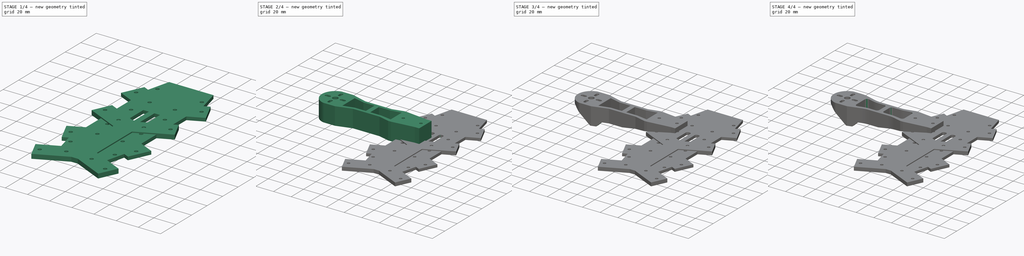
[diagram: build sequence overview — one tinted view per stage of 4, left to right]
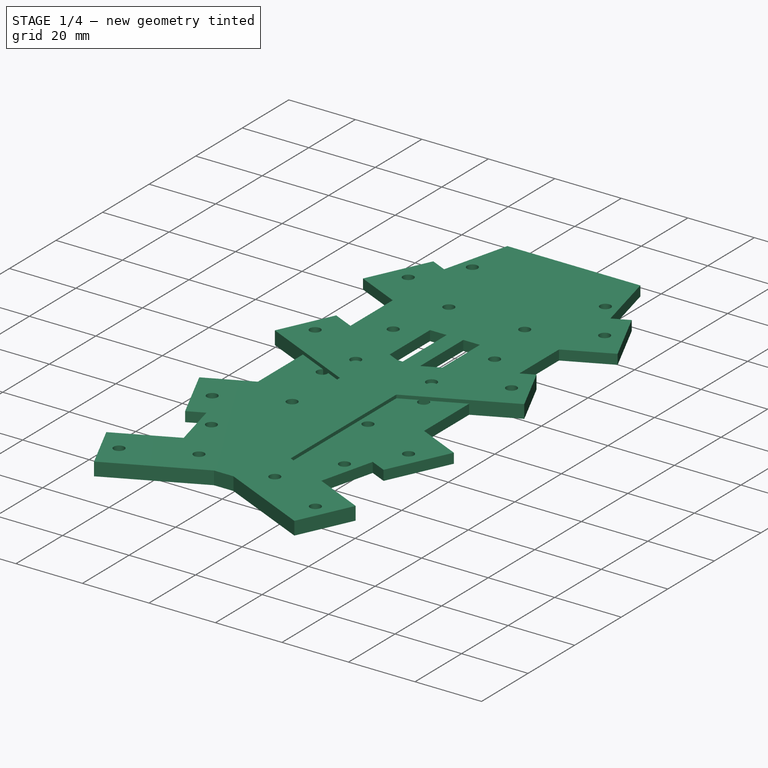
[diagram: stage 1 of 4 — iso view after this stage's code; geometry added in this stage tinted green]
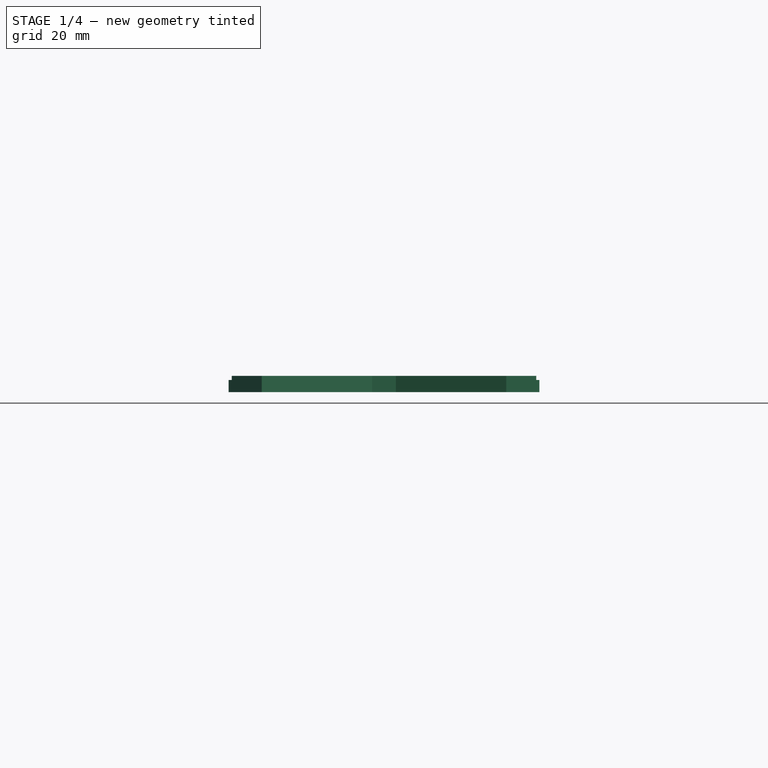
[diagram: stage 1 of 4 — front view after this stage's code; geometry added in this stage tinted green]
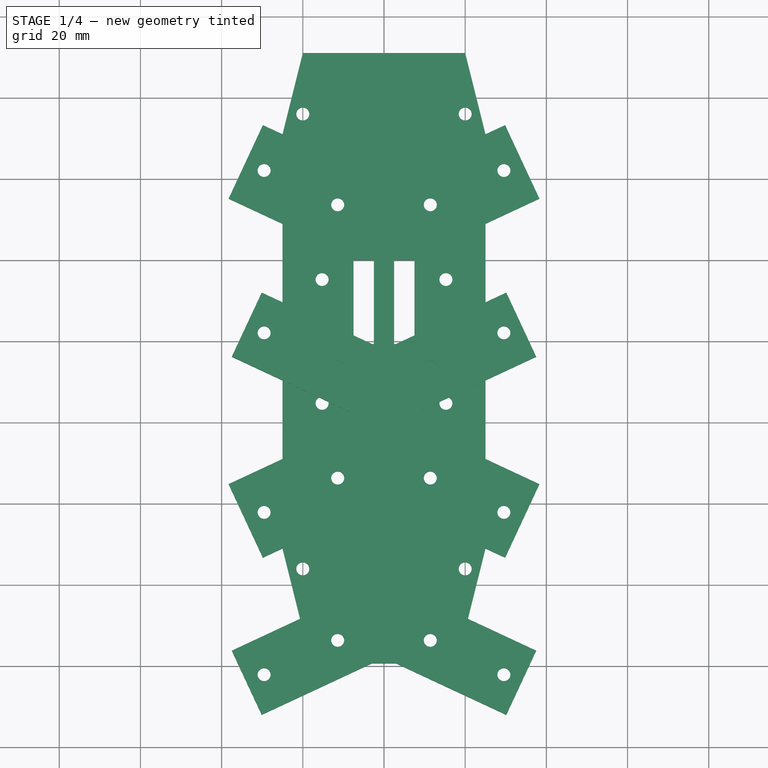
[diagram: stage 1 of 4 — top view after this stage's code; geometry added in this stage tinted green]
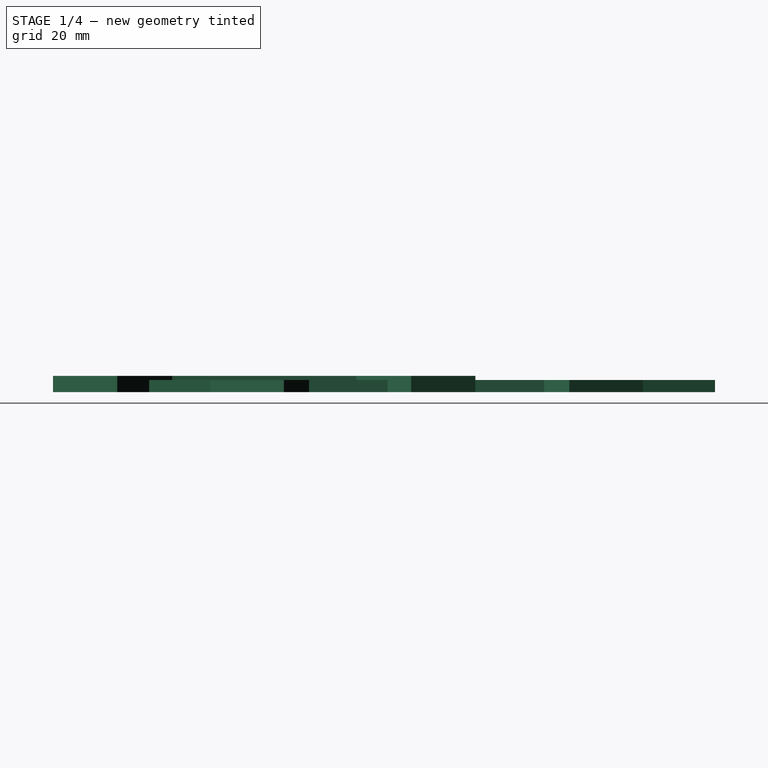
[diagram: stage 1 of 4 — right view after this stage's code; geometry added in this stage tinted green]
FCSTD DOCUMENT  (FreeCAD 0.16R6712 (Git))
Label: drone2_v0.5
License: All rights reserved
LicenseURL: http://en.wikipedia.org/wiki/All_rights_reserved
objects: Sketcher::SketchObject×7, PartDesign::Pad×4, PartDesign::Fillet×3, App::DocumentObjectGroup×3, PartDesign::Pocket×2, Spreadsheet::Sheet×1
note: 22 computed .brp shape members not serialized (recipe doc carries the construction recipe); baked Part::Feature solids carry a one-line shape summary decoded from their .brp

FEATURE [Sketcher::SketchObject] Sketch017
  sketch-geometry (20):
    g0: LineSegment [constr] StartX=-128.717 StartY=71.5455 StartZ=0 EndX=-53.717 EndY=71.5455 EndZ=0
    g1: LineSegment [constr] StartX=-3.71698 StartY=71.5455 StartZ=0 EndX=71.283 EndY=71.5455 EndZ=0
    g2: LineSegment [constr] StartX=-53.717 StartY=71.5455 StartZ=0 EndX=-3.71698 EndY=71.5455 EndZ=0
    g3: LineSegment [constr] StartX=-128.717 StartY=-78.4545 StartZ=0 EndX=-53.717 EndY=-78.4545 EndZ=0
    g4: LineSegment [constr] StartX=-53.717 StartY=-78.4545 StartZ=0 EndX=-3.71698 EndY=-78.4545 EndZ=0
    g5: LineSegment [constr] StartX=-3.71698 StartY=-78.4545 StartZ=0 EndX=71.283 EndY=-78.4545 EndZ=0
    g6: LineSegment [constr] StartX=71.283 StartY=71.5455 StartZ=0 EndX=71.283 EndY=-78.4545 EndZ=0
    g7: LineSegment [constr] StartX=-128.717 StartY=-78.4545 StartZ=0 EndX=-128.717 EndY=71.5455 EndZ=0
    g8: LineSegment [constr] StartX=-53.717 StartY=71.5455 StartZ=0 EndX=-53.717 EndY=21.5455 EndZ=0
    g9: LineSegment [constr] StartX=-53.717 StartY=21.5455 StartZ=0 EndX=-53.717 EndY=-28.4545 EndZ=0
    g10: LineSegment [constr] StartX=-53.717 StartY=-28.4545 StartZ=0 EndX=-53.717 EndY=-78.4545 EndZ=0
    g11: LineSegment [constr] StartX=-3.71698 StartY=71.5455 StartZ=0 EndX=-3.71698 EndY=21.5455 EndZ=0
    g12: LineSegment [constr] StartX=-3.71698 StartY=21.5455 StartZ=0 EndX=-3.71698 EndY=-28.4545 EndZ=0
    g13: LineSegment [constr] StartX=-3.71698 StartY=-28.4545 StartZ=0 EndX=-3.71698 EndY=-78.4545 EndZ=0
    g14: LineSegment [constr] StartX=-53.717 StartY=21.5455 StartZ=0 EndX=-3.71698 EndY=21.5455 EndZ=0
    g15: LineSegment [constr] StartX=-53.717 StartY=-28.4545 StartZ=0 EndX=-3.71698 EndY=-28.4545 EndZ=0
    g16: LineSegment [constr] StartX=-128.717 StartY=71.5455 StartZ=0 EndX=-53.717 EndY=36.5455 EndZ=0
    g17: LineSegment [constr] StartX=-3.71698 StartY=36.5455 StartZ=0 EndX=71.283 EndY=71.5455 EndZ=0
    g18: LineSegment [constr] StartX=-53.717 StartY=-43.4545 StartZ=0 EndX=-128.717 EndY=-78.4545 EndZ=0
    g19: LineSegment [constr] StartX=-3.71698 StartY=-43.4545 StartZ=0 EndX=71.283 EndY=-78.4545 EndZ=0
  constraints (55):
    c: Distance(g0,g5) = 250
    c: DistanceX(g0,g1) = 50
    c: Horizontal(g0)
    c: Horizontal(g1)
    c: Horizontal(g2)
    c: Equal(g0,g1)
    c: Horizontal(g3)
    c: Horizontal(g4)
    c: Horizontal(g5)
    c: Vertical(g6)
    c: Vertical(g7)
    c: Coincident(g8,g0)
    c: Vertical(g8)
    c: Coincident(g9,g8)
    c: Vertical(g9)
    c: Coincident(g10,g3)
    c: Vertical(g10)
    c: Coincident(g1,g11)
    c: Vertical(g11)
    c: Coincident(g11,g12)
    c: Vertical(g12)
    c: Coincident(g13,g4)
    c: Vertical(g13)
    c: Coincident(g4,g5)
    c: Coincident(g3,g4)
    c: Coincident(g13,g12)
    c: Coincident(g9,g10)
    c: Coincident(g14,g8)
    c: Coincident(g14,g11)
    c: Horizontal(g14)
    c: Coincident(g15,g9)
    c: Coincident(g15,g12)
    c: Horizontal(g15)
    c: DistanceY(g12,g12) = 50
    c: Equal(g8,g10)
    c: Coincident(g2,g1)
    c: Coincident(g2,g0)
    c: Distance(g1,g3) = 250
    c: Coincident(g1,g6)
    c: Coincident(g5,g6)
    c: Coincident(g7,g3)
    c: Coincident(g7,g0)
    c: Coincident(g16,g0)
    c: PointOnObject(g16,g8)
    c: PointOnObject(g17,g11)
    c: Coincident(g17,g1)
    c: PointOnObject(g18,g10)
    c: Coincident(g18,g3)
    c: PointOnObject(g19,g13)
    c: Coincident(g19,g5)
    c: DistanceY(g8,g16) = 15
    c: DistanceY(g11,g17) = 15
    c: DistanceY(g19,g12) = 15
    c: DistanceY(g18,g9) = 15
    c: DistanceX(g0,g0) = 75
FEATURE [Sketcher::SketchObject] Sketch024
  sketch-geometry (49):
    g0: LineSegment StartX=-25 StartY=28.9662 StartZ=0 EndX=-25 EndY=-28.9662 EndZ=0
    g1: LineSegment StartX=-25 StartY=-28.9662 StartZ=0 EndX=-38.2893 EndY=-35.1631 EndZ=0
    g2: LineSegment StartX=-38.2893 StartY=-35.1631 StartZ=0 EndX=-29.8369 EndY=-53.2893 EndZ=0
    g3: LineSegment StartX=-29.8369 StartY=-53.2893 StartZ=0 EndX=-25 EndY=-51.0338 EndZ=0
    g4: LineSegment StartX=-25 StartY=-51.0338 StartZ=0 EndX=-20 EndY=-71.0338 EndZ=0
    g5: LineSegment StartX=-20 StartY=-71.0338 StartZ=0 EndX=20 EndY=-71.0338 EndZ=0
    g6: LineSegment StartX=20 StartY=-71.0338 StartZ=0 EndX=25 EndY=-51.0338 EndZ=0
    g7: LineSegment StartX=25 StartY=-51.0338 StartZ=0 EndX=29.8369 EndY=-53.2893 EndZ=0
    g8: LineSegment StartX=29.8369 StartY=-53.2893 StartZ=0 EndX=38.2893 EndY=-35.1631 EndZ=0
    g9: LineSegment StartX=38.2893 StartY=-35.1631 StartZ=0 EndX=25 EndY=-28.9662 EndZ=0
    g10: LineSegment StartX=25 StartY=-28.9662 StartZ=0 EndX=25 EndY=28.9662 EndZ=0
    g11: LineSegment StartX=25 StartY=28.9662 StartZ=0 EndX=38.2893 EndY=35.1631 EndZ=0
    g12: LineSegment StartX=38.2893 StartY=35.1631 StartZ=0 EndX=29.8369 EndY=53.2893 EndZ=0
    g13: LineSegment StartX=29.8369 StartY=53.2893 StartZ=0 EndX=25 EndY=51.0338 EndZ=0
    g14: LineSegment StartX=25 StartY=51.0338 StartZ=0 EndX=20 EndY=71.0338 EndZ=0
    g15: LineSegment StartX=20 StartY=71.0338 StartZ=0 EndX=-20 EndY=71.0338 EndZ=0
    g16: LineSegment StartX=-20 StartY=71.0338 StartZ=0 EndX=-25 EndY=51.0338 EndZ=0
    g17: LineSegment StartX=-25 StartY=51.0338 StartZ=0 EndX=-29.8369 EndY=53.2893 EndZ=0
    g18: LineSegment StartX=-29.8369 StartY=53.2893 StartZ=0 EndX=-38.2893 EndY=35.1631 EndZ=0
    g19: LineSegment StartX=-38.2893 StartY=35.1631 StartZ=0 EndX=-25 EndY=28.9662 EndZ=0
    g20: GeomPoint [constr] X=-25 Y=40 Z=0
    g21: GeomPoint [constr] X=25 Y=40 Z=0
    g22: GeomPoint [constr] X=25 Y=-40 Z=0
    g23: Circle CenterX=-29.5315 CenterY=42.1131 CenterZ=0 NormalX=0 NormalY=0 NormalZ=1 Radius=1.6
    g24: Circle CenterX=-11.4054 CenterY=33.6607 CenterZ=0 NormalX=0 NormalY=0 NormalZ=1 Radius=1.6
    g25: Circle CenterX=29.5315 CenterY=42.1131 CenterZ=0 NormalX=0 NormalY=0 NormalZ=1 Radius=1.6
    g26: Circle CenterX=11.4054 CenterY=33.6607 CenterZ=0 NormalX=0 NormalY=0 NormalZ=1 Radius=1.6
    g27: Circle CenterX=15.25 CenterY=15.25 CenterZ=0 NormalX=0 NormalY=0 NormalZ=1 Radius=1.6
    g28: Circle CenterX=-15.25 CenterY=15.25 CenterZ=0 NormalX=0 NormalY=0 NormalZ=1 Radius=1.6
    g29: Circle CenterX=-15.25 CenterY=-15.25 CenterZ=0 NormalX=0 NormalY=0 NormalZ=1 Radius=1.6
    g30: Circle CenterX=15.25 CenterY=-15.25 CenterZ=0 NormalX=0 NormalY=0 NormalZ=1 Radius=1.6
    g31: Circle CenterX=-29.5315 CenterY=-42.1131 CenterZ=0 NormalX=0 NormalY=0 NormalZ=1 Radius=1.6
    g32: Circle CenterX=-11.4054 CenterY=-33.6607 CenterZ=0 NormalX=0 NormalY=0 NormalZ=1 Radius=1.6
    g33: Circle CenterX=11.4054 CenterY=-33.6607 CenterZ=0 NormalX=0 NormalY=0 NormalZ=1 Radius=1.6
    g34: Circle CenterX=29.5315 CenterY=-42.1131 CenterZ=0 NormalX=0 NormalY=0 NormalZ=1 Radius=1.6
    g35: Circle CenterX=-20 CenterY=56.0338 CenterZ=0 NormalX=0 NormalY=0 NormalZ=1 Radius=1.6
    g36: Circle CenterX=20 CenterY=56.0338 CenterZ=0 NormalX=0 NormalY=0 NormalZ=1 Radius=1.6
    g37: Circle CenterX=-20 CenterY=-56.0338 CenterZ=0 NormalX=0 NormalY=0 NormalZ=1 Radius=1.6
    g38: Circle CenterX=20 CenterY=-56.0338 CenterZ=0 NormalX=0 NormalY=0 NormalZ=1 Radius=1.6
    g39: Circle CenterX=-20 CenterY=0 CenterZ=0 NormalX=0 NormalY=0 NormalZ=1 Radius=1.6
    g40: Circle CenterX=20 CenterY=0 CenterZ=0 NormalX=0 NormalY=0 NormalZ=1 Radius=1.6
    g41: LineSegment StartX=-7.5 StartY=-20 StartZ=0 EndX=-7.5 EndY=20 EndZ=0
    g42: LineSegment StartX=-7.5 StartY=20 StartZ=0 EndX=-2.5 EndY=20 EndZ=0
    g43: LineSegment StartX=-2.5 StartY=20 StartZ=0 EndX=-2.5 EndY=-20 EndZ=0
    g44: LineSegment StartX=-2.5 StartY=-20 StartZ=0 EndX=-7.5 EndY=-20 EndZ=0
    g45: LineSegment StartX=2.5 StartY=20 StartZ=0 EndX=2.5 EndY=-20 EndZ=0
    g46: LineSegment StartX=2.5 StartY=-20 StartZ=0 EndX=7.5 EndY=-20 EndZ=0
    g47: LineSegment StartX=7.5 StartY=-20 StartZ=0 EndX=7.5 EndY=20 EndZ=0
    g48: LineSegment StartX=7.5 StartY=20 StartZ=0 EndX=2.5 EndY=20 EndZ=0
  constraints (144):
    c: Vertical(g0)
    c: Coincident(g0,g1)
    c: Coincident(g1,g2)
    c: Coincident(g2,g3)
    c: Coincident(g3,g4)
    c: Coincident(g4,g5)
    c: Coincident(g5,g6)
    c: Coincident(g6,g7)
    c: Coincident(g7,g8)
    c: Coincident(g8,g9)
    c: Coincident(g9,g10)
    c: Coincident(g10,g11)
    c: Coincident(g11,g12)
    c: Coincident(g12,g13)
    c: Coincident(g13,g14)
    c: Coincident(g14,g15)
    c: Coincident(g15,g16)
    c: Coincident(g16,g17)
    c: Coincident(g17,g18)
    c: Coincident(g18,g19)
    c: Coincident(g19,g0)
    c: DistanceX(g0,g-1) = 25
    c: DistanceX(g-1,g10) = 25
    c: DistanceX(g20,g-1) = 25
    c: DistanceY(g-1,g20) = 40
    c: DistanceX(g-1,g21) = 25
    c: DistanceY(g-1,g21) = 40
    c: Distance(g20,g17) = 10
    c: Distance(g20,g19) = 10
    c: Distance(g20,g18) = 10
    c: Perpendicular(g18,g17)
    c: Perpendicular(g19,g18)
    c: Angle(g19,g0) = 2.00713
    c: Horizontal(g15)
    c: Horizontal(g5)
    c: Equal(g5,g15)
    c: Equal(g10,g0)
    c: Vertical(g10)
    c: Angle(g10,g11) = 2.00713
    c: Angle(g9,g10) = 2.00713
    c: Angle(g0,g1) = 2.00713
    c: Perpendicular(g12,g13)
    c: Perpendicular(g12,g11)
    c: Perpendicular(g2,g1)
    c: Perpendicular(g2,g3)
    c: Perpendicular(g8,g7)
    c: Perpendicular(g8,g9)
    c: Equal(g14,g16)
    c: Equal(g16,g4)
    c: Equal(g4,g6)
    c: Equal(g1,g19)
    c: Equal(g19,g11)
    c: Equal(g11,g9)
    c: Equal(g12,g18)
    c: Equal(g18,g2)
    c: Equal(g2,g8)
    c: Equal(g17,g13)
    c: Equal(g13,g7)
    c: Equal(g7,g3)
    c: Distance(g21,g13) = 10
    c: DistanceX(g-1,g22) = 25
    c: DistanceY(g22,g-1) = 40
    c: Distance(g22,g9) = 10
    c: Radius(g31) = 1.6
    c: Equal(g31,g32)
    c: Equal(g31,g29)
    c: Equal(g31,g30)
    c: Equal(g31,g33)
    c: Equal(g31,g34)
    c: Radius(g23) = 1.6
    c: Equal(g23,g24)
    c: Equal(g23,g28)
    c: Equal(g23,g27)
    c: Equal(g23,g26)
    c: Equal(g23,g25)
    c: Distance(g23,g18) = 5
    c: Distance(g23,g19) = 10
    c: Distance(g24,g19) = 10
    c: Distance(g24,g18) = 25
    c: Distance(g25,g11) = 10
    c: Distance(g25,g12) = 5
    c: Distance(g26,g11) = 10
    c: Distance(g26,g12) = 25
    c: DistanceY(g-1,g27) = 15.25
    c: DistanceY(g-1,g28) = 15.25
    c: DistanceY(g29,g-1) = 15.25
    c: DistanceY(g30,g-1) = 15.25
    c: Distance(g31,g1) = 10
    c: Distance(g32,g1) = 10
    c: Distance(g31,g2) = 5
    c: Distance(g32,g2) = 25
    c: Distance(g33,g8) = 25
    c: Distance(g33,g9) = 10
    c: Distance(g34,g9) = 10
    c: Distance(g34,g8) = 5
    c: DistanceX(g29,g-1) = 15.25
    c: DistanceX(g-1,g27) = 15.25
    c: DistanceX(g28,g-1) = 15.25
    c: DistanceX(g-1,g30) = 15.25
    c: DistanceX(g16,g13) = 50
    c: DistanceX(g16,g35) = 5
    c: DistanceY(g16,g35) = 5
    c: DistanceY(g13,g36) = 5
    c: DistanceX(g36,g13) = 5
    c: DistanceX(g16,g15) = 5
    c: DistanceY(g16,g15) = 20
    c: Equal(g35,g36)
    c: Equal(g36,g23)
    c: Equal(g38,g37)
    c: Equal(g37,g32)
    c: DistanceX(g3,g37) = 5
    c: DistanceY(g37,g3) = 5
    c: DistanceY(g38,g6) = 5
    c: DistanceX(g38,g6) = 5
    c: PointOnObject(g39,g-1)
    c: PointOnObject(g40,g-1)
    c: DistanceX(g40,g9) = 5
    c: DistanceX(g0,g39) = 5
    c: Equal(g39,g40)
    c: Equal(g40,g27)
    c: Vertical(g41)
    c: Coincident(g41,g42)
    c: Horizontal(g42)
    c: Coincident(g42,g43)
    c: Vertical(g43)
    c: Coincident(g43,g44)
    c: DistanceY(g43,g-1) = 20
    c: DistanceY(g43,g43) = 40
    c: DistanceX(g42,g42) = 5
    c: Horizontal(g44)
    c: Coincident(g41,g44)
    c: Distance(g-1,g43) = 2.5
    c: Vertical(g45)
    c: Coincident(g45,g46)
    c: Horizontal(g46)
    c: Coincident(g46,g47)
    c: Vertical(g47)
    c: Coincident(g47,g48)
    c: Coincident(g48,g45)
    c: Horizontal(g48)
    c: Distance(g48) = 5
    c: Distance(g45) = 40
    c: DistanceX(g-1,g45) = 2.5
    c: DistanceY(g45,g-1) = 20
FEATURE [PartDesign::Pad] Pad004
  Length = 3
  Length2 = 100
  Sketch = -> Sketch024
  Type = 0
FEATURE [App::DocumentObjectGroup] Groupe002  label="base001"
  Group = -> [Pad004,Fillet014]
FEATURE [Spreadsheet::Sheet] Spreadsheet  label="SupportMesure"
  cells = A1=reduction; B1(Reduc)=0.28
FEATURE [PartDesign::Pad] Pad
  Length = 4
  Length2 = 100
  Sketch = -> Sketch
  Type = 0
FEATURE [App::DocumentObjectGroup] Groupe  label="support"
  Group = -> [Spreadsheet,Pad]
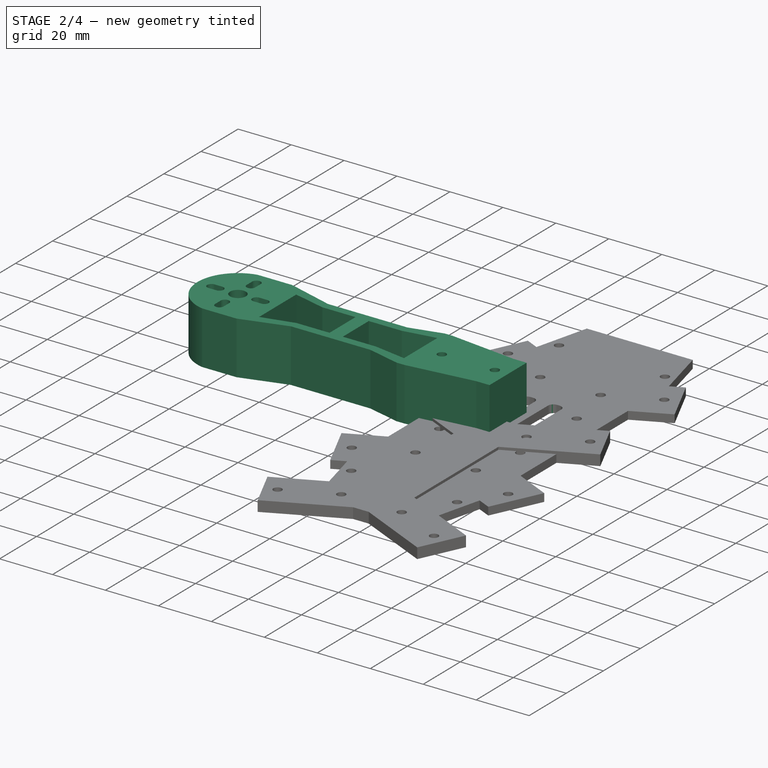
[diagram: stage 2 of 4 — iso view after this stage's code; geometry added in this stage tinted green]
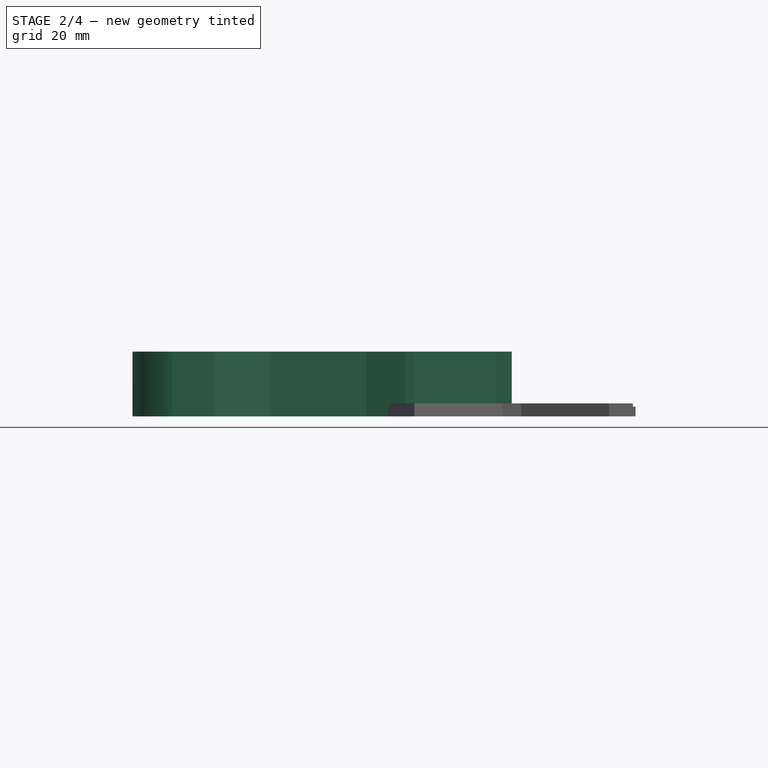
[diagram: stage 2 of 4 — front view after this stage's code; geometry added in this stage tinted green]
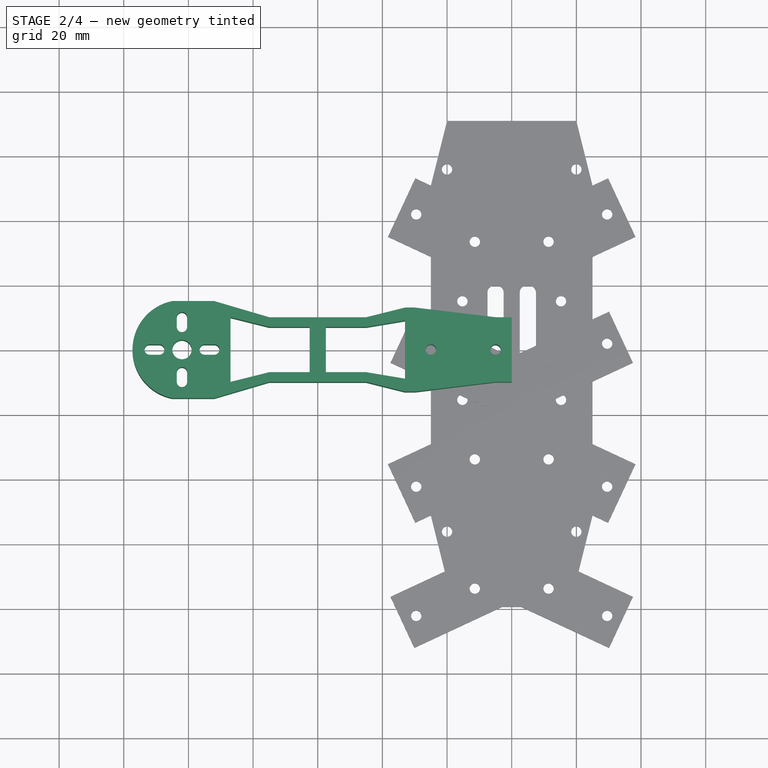
[diagram: stage 2 of 4 — top view after this stage's code; geometry added in this stage tinted green]
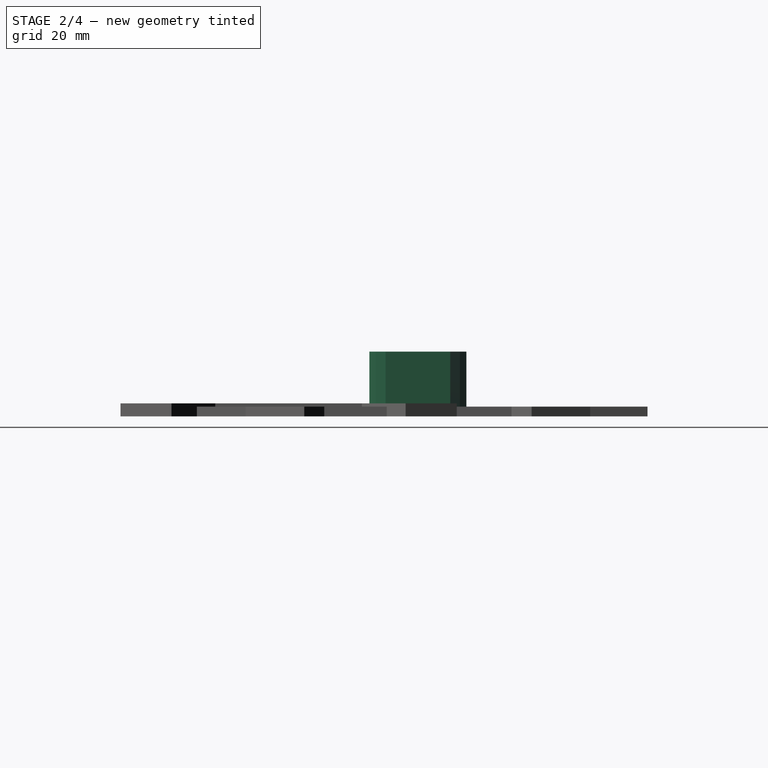
[diagram: stage 2 of 4 — right view after this stage's code; geometry added in this stage tinted green]
FEATURE [Sketcher::SketchObject] Sketch026
  sketch-geometry (47):
    g0: LineSegment StartX=0 StartY=10 StartZ=0 EndX=-5 EndY=10 EndZ=0
    g1: LineSegment StartX=-5 StartY=10 StartZ=0 EndX=-30 EndY=13 EndZ=0
    g2: LineSegment StartX=-30 StartY=13 StartZ=0 EndX=-33 EndY=13 EndZ=0
    g3: LineSegment StartX=-33 StartY=13 StartZ=0 EndX=-45 EndY=10 EndZ=0
    g4: LineSegment StartX=-45 StartY=10 StartZ=0 EndX=-75 EndY=10 EndZ=0
    g5: LineSegment StartX=-75 StartY=10 StartZ=0 EndX=-92 EndY=15 EndZ=0
    g6: LineSegment StartX=-92 StartY=15 StartZ=0 EndX=-105 EndY=15 EndZ=0
    g7: LineSegment StartX=-105 StartY=-15 StartZ=0 EndX=-92 EndY=-15 EndZ=0
    g8: LineSegment StartX=-92 StartY=-15 StartZ=0 EndX=-75 EndY=-10 EndZ=0
    g9: LineSegment StartX=-75 StartY=-10 StartZ=0 EndX=-45 EndY=-10 EndZ=0
    g10: LineSegment StartX=-45 StartY=-10 StartZ=0 EndX=-33 EndY=-13 EndZ=0
    g11: LineSegment StartX=-33 StartY=-13 StartZ=0 EndX=-30 EndY=-13 EndZ=0
    g12: LineSegment StartX=-30 StartY=-13 StartZ=0 EndX=-5 EndY=-10 EndZ=0
    g13: LineSegment StartX=-5 StartY=-10 StartZ=0 EndX=0 EndY=-10 EndZ=0
    g14: LineSegment StartX=0 StartY=-10 StartZ=0 EndX=0 EndY=10 EndZ=0
    g15: LineSegment StartX=-33 StartY=9 StartZ=0 EndX=-45 EndY=7 EndZ=0
    g16: LineSegment StartX=-45 StartY=7 StartZ=0 EndX=-57.5 EndY=7 EndZ=0
    g17: LineSegment StartX=-57.5 StartY=7 StartZ=0 EndX=-57.5 EndY=-7 EndZ=0
    g18: LineSegment StartX=-57.5 StartY=-7 StartZ=0 EndX=-45 EndY=-7 EndZ=0
    g19: LineSegment StartX=-45 StartY=-7 StartZ=0 EndX=-33 EndY=-9 EndZ=0
    g20: LineSegment StartX=-33 StartY=9 StartZ=0 EndX=-33 EndY=-9 EndZ=0
    g21: LineSegment StartX=-62.5 StartY=7 StartZ=0 EndX=-62.5 EndY=-7 EndZ=0
    g22: LineSegment StartX=-62.5 StartY=-7 StartZ=0 EndX=-75 EndY=-7 EndZ=0
    g23: LineSegment StartX=-75 StartY=-7 StartZ=0 EndX=-87 EndY=-10 EndZ=0
    g24: LineSegment StartX=-87 StartY=-10 StartZ=0 EndX=-87 EndY=10 EndZ=0
    g25: LineSegment StartX=-87 StartY=10 StartZ=0 EndX=-75 EndY=7 EndZ=0
    g26: LineSegment StartX=-75 StartY=7 StartZ=0 EndX=-62.5 EndY=7 EndZ=0
    g27: Circle CenterX=-5 CenterY=0 CenterZ=0 NormalX=0 NormalY=0 NormalZ=1 Radius=1.6
    g28: Circle CenterX=-25 CenterY=0 CenterZ=0 NormalX=0 NormalY=0 NormalZ=1 Radius=1.6
    g29: ArcOfCircle CenterX=-102 CenterY=0 CenterZ=0 NormalX=0 NormalY=0 NormalZ=1 Radius=15.2971 StartAngle=1.76819 EndAngle=4.51499
    g30: Circle CenterX=-102 CenterY=0 CenterZ=0 NormalX=0 NormalY=0 NormalZ=1 Radius=3
    g31: ArcOfCircle CenterX=-112 CenterY=0 CenterZ=0 NormalX=0 NormalY=0 NormalZ=1 Radius=1.6 StartAngle=1.5708 EndAngle=4.71239
    g32: ArcOfCircle CenterX=-109 CenterY=0 CenterZ=0 NormalX=0 NormalY=0 NormalZ=1 Radius=1.6 StartAngle=4.71239 EndAngle=7.85398
    g33: LineSegment StartX=-112 StartY=-1.6 StartZ=0 EndX=-109 EndY=-1.6 EndZ=0
    g34: LineSegment StartX=-112 StartY=1.6 StartZ=0 EndX=-109 EndY=1.6 EndZ=0
    g35: ArcOfCircle CenterX=-92 CenterY=0 CenterZ=0 NormalX=0 NormalY=0 NormalZ=1 Radius=1.6 StartAngle=4.71239 EndAngle=7.85398
    g36: ArcOfCircle CenterX=-95 CenterY=0 CenterZ=0 NormalX=0 NormalY=0 NormalZ=1 Radius=1.6 StartAngle=1.5708 EndAngle=4.71239
    g37: LineSegment StartX=-92 StartY=1.6 StartZ=0 EndX=-95 EndY=1.6 EndZ=0
    g38: LineSegment StartX=-92 StartY=-1.6 StartZ=0 EndX=-95 EndY=-1.6 EndZ=0
    g39: ArcOfCircle CenterX=-102 CenterY=10 CenterZ=0 NormalX=0 NormalY=0 NormalZ=1 Radius=1.6 StartAngle=0 EndAngle=3.14159
    g40: ArcOfCircle CenterX=-102 CenterY=7 CenterZ=0 NormalX=0 NormalY=0 NormalZ=1 Radius=1.6 StartAngle=3.14159 EndAngle=6.28319
    g41: LineSegment StartX=-103.6 StartY=10 StartZ=0 EndX=-103.6 EndY=7 EndZ=0
    g42: LineSegment StartX=-100.4 StartY=10 StartZ=0 EndX=-100.4 EndY=7 EndZ=0
    g43: ArcOfCircle CenterX=-102 CenterY=-7 CenterZ=0 NormalX=0 NormalY=0 NormalZ=1 Radius=1.6 StartAngle=0 EndAngle=3.14159
    g44: ArcOfCircle CenterX=-102 CenterY=-10 CenterZ=0 NormalX=0 NormalY=0 NormalZ=1 Radius=1.6 StartAngle=3.14159 EndAngle=6.28319
    g45: LineSegment StartX=-103.6 StartY=-7 StartZ=0 EndX=-103.6 EndY=-10 EndZ=0
    g46: LineSegment StartX=-100.4 StartY=-7 StartZ=0 EndX=-100.4 EndY=-10 EndZ=0
  constraints (132):
    c: Horizontal(g0)
    c: Coincident(g0,g1)
    c: Coincident(g1,g2)
    c: Horizontal(g2)
    c: Coincident(g2,g3)
    c: Coincident(g3,g4)
    c: Horizontal(g4)
    c: Coincident(g4,g5)
    c: Coincident(g5,g6)
    c: Horizontal(g7)
    c: Coincident(g7,g8)
    c: Coincident(g8,g9)
    c: Horizontal(g9)
    c: Coincident(g9,g10)
    c: Coincident(g10,g11)
    c: Coincident(g11,g12)
    c: Coincident(g12,g13)
    c: Horizontal(g13)
    c: Coincident(g13,g14)
    c: Coincident(g14,g0)
    c: Vertical(g14)
    c: Horizontal(g6)
    c: Horizontal(g11)
    c: PointOnObject(g-1,g14)
    c: DistanceY(g-1,g0) = 10
    c: DistanceY(g13,g-1) = 10
    c: Equal(g0,g13)
    c: Equal(g2,g11)
    c: Equal(g9,g4)
    c: Equal(g6,g7)
    c: Equal(g5,g8)
    c: Equal(g3,g10)
    c: Equal(g1,g12)
    c: DistanceX(g2,g2) = 3
    c: DistanceX(g3,g3) = 12
    c: DistanceX(g4,g4) = 30
    c: DistanceY(g1,g1) = 3
    c: DistanceY(g3,g3) = 3
    c: DistanceX(g5,g5) = 17
    c: DistanceY(g5,g5) = 5
    c: DistanceY(g8,g8) = 5
    c: Coincident(g15,g16)
    c: Horizontal(g16)
    c: Coincident(g16,g17)
    c: Coincident(g17,g18)
    c: Horizontal(g18)
    c: Coincident(g18,g19)
    c: DistanceY(g15,g2) = 4
    c: DistanceX(g15,g2) = 0
    c: DistanceY(g15,g3) = 3
    c: DistanceX(g3,g15) = 0
    c: DistanceX(g16,g16) = 12.5
    c: Vertical(g17)
    c: DistanceY(g9,g18) = 3
    c: DistanceY(g10,g19) = 4
    c: DistanceX(g19,g10) = 0
    c: DistanceX(g18,g9) = 0
    c: Coincident(g20,g15)
    c: Coincident(g20,g19)
    c: Vertical(g21)
    c: Coincident(g21,g22)
    c: Horizontal(g22)
    c: Coincident(g22,g23)
    c: Coincident(g23,g24)
    c: Vertical(g24)
    c: Coincident(g24,g25)
    c: Coincident(g25,g26)
    c: Horizontal(g26)
    c: Coincident(g26,g21)
    c: DistanceX(g6,g24) = 18
    c: DistanceX(g26,g26) = 12.5
    c: DistanceY(g25,g4) = 3
    c: DistanceY(g8,g22) = 3
    c: DistanceX(g8,g22) = 0
    c: DistanceX(g4,g25) = 0
    c: DistanceY(g25,g24) = 3
    c: DistanceY(g23,g23) = 3
    c: DistanceX(g1,g1) = 25
    c: DistanceX(g0,g0) = 5
    c: DistanceX(g28,g-1) = 25
    c: DistanceX(g27,g-1) = 5
    c: DistanceY(g28,g-1) = 0
    c: DistanceY(g27,g-1) = 0
    c: PointOnObject(g29,g-1)
    c: Coincident(g29,g7)
    c: Coincident(g29,g6)
    c: DistanceX(g29,g-1) = 102
    c: Coincident(g30,g29)
    c: Radius(g30) = 3
    c: Tangent(g31,g34) = 1.5708
    c: Tangent(g31,g33) = -1.5708
    c: Tangent(g33,g32) = -1.5708
    c: Tangent(g34,g32) = 1.5708
    c: Horizontal(g33)
    c: Equal(g31,g32)
    c: PointOnObject(g31,g-1)
    c: Tangent(g35,g38) = 1.5708
    c: Tangent(g35,g37) = -1.5708
    c: Tangent(g37,g36) = -1.5708
    c: Tangent(g38,g36) = 1.5708
    c: Horizontal(g37)
    c: Equal(g35,g36)
    c: PointOnObject(g35,g-1)
    c: Tangent(g39,g42) = 1.5708
    c: Tangent(g39,g41) = -1.5708
    c: Tangent(g41,g40) = -1.5708
    c: Tangent(g42,g40) = 1.5708
    c: Vertical(g41)
    c: Equal(g39,g40)
    c: Tangent(g43,g46) = 1.5708
    c: Tangent(g43,g45) = -1.5708
    c: Tangent(g45,g44) = -1.5708
    c: Tangent(g46,g44) = 1.5708
    c: Vertical(g45)
    c: Equal(g43,g44)
    c: DistanceX(g32,g29) = 7
    c: DistanceX(g31,g32) = 3
    c: DistanceY(g44,g43) = 3
    c: DistanceY(g40,g39) = 3
    c: DistanceX(g36,g35) = 3
    c: DistanceX(g29,g36) = 7
    c: DistanceX(g29,g43) = 0
    c: DistanceY(g43,g29) = 7
    c: DistanceY(g29,g40) = 7
    c: DistanceX(g40,g29) = 0
    c: Radius(g32) = 1.6
    c: Equal(g32,g40)
    c: Equal(g40,g36)
    c: Equal(g36,g43)
    c: Radius(g27) = 1.6
    c: DistanceX(g24,g25) = 12
    c: DistanceY(g11,g12) = 3
FEATURE [PartDesign::Pad] Pad007
  Length = 20
  Length2 = 100
  Sketch = -> Sketch026
  Type = 0
FEATURE [App::DocumentObjectGroup] Groupe004  label="bras"
  Group = -> [Pad006,Pad007,Pocket002,Pocket003,Fillet,Fillet013]
FEATURE [Sketcher::SketchObject] Sketch
  expr: Constraints[72] = 5 - SupportMesure.Reduc
  expr: Constraints[57] = 10 - SupportMesure.Reduc
  expr: Constraints[66] = 9 - SupportMesure.Reduc
  expr: Constraints[71] = 5 - SupportMesure.Reduc
  expr: Constraints[59] = 10 - SupportMesure.Reduc
  expr: Constraints[58] = 9 - SupportMesure.Reduc
  expr: Constraints[68] = 9 - SupportMesure.Reduc
  expr: Constraints[18] = 9 - SupportMesure.Reduc
  expr: Constraints[27] = 9 - SupportMesure.Reduc
  expr: Constraints[26] = 9 - SupportMesure.Reduc
  expr: Constraints[28] = 9 - SupportMesure.Reduc
  expr: Constraints[56] = 9 - SupportMesure.Reduc
  expr: Constraints[67] = 9 - SupportMesure.Reduc
  expr: Constraints[24] = 9 - SupportMesure.Reduc
  expr: Constraints[31] = 5 - SupportMesure.Reduc
  expr: Constraints[65] = 9 - SupportMesure.Reduc
  expr: Constraints[17] = 18 - 2 * SupportMesure.Reduc
  expr: Constraints[19] = 9 - SupportMesure.Reduc
  expr: Constraints[21] = 10 - SupportMesure.Reduc
  expr: Constraints[20] = 10 - SupportMesure.Reduc
  expr: Constraints[25] = 5 - SupportMesure.Reduc
  sketch-geometry (28):
    g0: GeomPoint [constr] X=-25 Y=0 Z=0
    g1: GeomPoint [constr] X=25 Y=0 Z=0
    g2: LineSegment StartX=-37.4945 StartY=-3.79515 StartZ=0 EndX=-8.49269 EndY=-17.3189 EndZ=0
    g3: LineSegment StartX=8.49269 StartY=-17.3189 StartZ=0 EndX=37.4945 EndY=-3.79515 EndZ=0
    g4: LineSegment StartX=37.4945 StartY=-3.79515 StartZ=0 EndX=30.1241 EndY=12.0109 EndZ=0
    g5: LineSegment StartX=30.1241 StartY=12.0109 StartZ=0 EndX=2.93485 EndY=-0.667694 EndZ=0
    g6: LineSegment StartX=2.93485 StartY=-0.667694 StartZ=0 EndX=-2.93485 EndY=-0.667694 EndZ=0
    g7: LineSegment StartX=-2.93485 StartY=-0.667694 StartZ=0 EndX=-30.1241 EndY=12.0109 EndZ=0
    g8: LineSegment StartX=-30.1241 StartY=12.0109 StartZ=0 EndX=-37.4945 EndY=-3.79515 EndZ=0
    g9: Circle CenterX=-29.5315 CenterY=2.11309 CenterZ=0 NormalX=0 NormalY=0 NormalZ=1 Radius=1.6
    g10: Circle CenterX=-11.4054 CenterY=-6.33927 CenterZ=0 NormalX=0 NormalY=0 NormalZ=1 Radius=1.6
    g11: Circle CenterX=11.4054 CenterY=-6.33927 CenterZ=0 NormalX=0 NormalY=0 NormalZ=1 Radius=1.6
    g12: Circle CenterX=29.5315 CenterY=2.11309 CenterZ=0 NormalX=0 NormalY=0 NormalZ=1 Radius=1.6
    g13: LineSegment StartX=-8.49269 StartY=-62.6811 StartZ=0 EndX=-37.4945 EndY=-76.2048 EndZ=0
    g14: LineSegment StartX=-37.4945 StartY=-76.2048 StartZ=0 EndX=-30.1241 EndY=-92.0109 EndZ=0
    g15: LineSegment StartX=-30.1241 StartY=-92.0109 StartZ=0 EndX=-2.93485 EndY=-79.3323 EndZ=0
    g16: LineSegment StartX=-2.93485 StartY=-79.3323 StartZ=0 EndX=2.93485 EndY=-79.3323 EndZ=0
    g17: LineSegment StartX=2.93485 StartY=-79.3323 StartZ=0 EndX=30.1241 EndY=-92.0109 EndZ=0
    g18: LineSegment StartX=30.1241 StartY=-92.0109 StartZ=0 EndX=37.4945 EndY=-76.2048 EndZ=0
    g19: LineSegment StartX=37.4945 StartY=-76.2048 StartZ=0 EndX=8.49269 EndY=-62.6811 EndZ=0
    g20: GeomPoint [constr] X=-25 Y=-80 Z=0
    g21: GeomPoint [constr] X=25 Y=-80 Z=0
    g22: Circle CenterX=-29.5315 CenterY=-82.1131 CenterZ=0 NormalX=0 NormalY=0 NormalZ=1 Radius=1.6
    g23: Circle CenterX=-11.4054 CenterY=-73.6607 CenterZ=0 NormalX=0 NormalY=0 NormalZ=1 Radius=1.6
    g24: Circle CenterX=11.4054 CenterY=-73.6607 CenterZ=0 NormalX=0 NormalY=0 NormalZ=1 Radius=1.6
    g25: Circle CenterX=29.5315 CenterY=-82.1131 CenterZ=0 NormalX=0 NormalY=0 NormalZ=1 Radius=1.6
    g26: LineSegment StartX=-8.49269 StartY=-62.6811 StartZ=0 EndX=-8.49269 EndY=-17.3189 EndZ=0
    g27: LineSegment StartX=8.49269 StartY=-17.3189 StartZ=0 EndX=8.49269 EndY=-62.6811 EndZ=0
  constraints (80):
    c: PointOnObject(g0,g-1)
    c: PointOnObject(g1,g-1)
    c: DistanceX(g0,g-1) = 25
    c: DistanceX(g-1,g1) = 25
    c: Coincident(g3,g4)
    c: Coincident(g4,g5)
    c: Coincident(g5,g6)
    c: Horizontal(g6)
    c: Coincident(g6,g7)
    c: Coincident(g7,g8)
    c: Coincident(g8,g2)
    c: Perpendicular(g7,g8)
    c: Perpendicular(g8,g2)
    c: Perpendicular(g4,g5)
    c: Perpendicular(g4,g3)
    c: Angle(g5,g6) = 2.70526
    c: Angle(g6,g7) = 2.70526
    c: Distance(g4) = 17.44
    c: Distance(g0,g7) = 8.72
    c: Distance(g1,g5) = 8.72
    c: Distance(g1,g4) = 9.72
    c: Distance(g0,g8) = 9.72
    c: Distance(g7) = 30
    c: Distance(g2) = 32
    c: Distance(g12,g3) = 8.72
    c: Distance(g12,g4) = 4.72
    c: Distance(g11,g5) = 8.72
    c: Distance(g10,g7) = 8.72
    c: Distance(g9,g7) = 8.72
    c: Distance(g10,g9) = 20
    c: Distance(g11,g12) = 20
    c: Distance(g9,g8) = 4.72
    c: Radius(g10) = 1.6
    c: Equal(g10,g9)
    c: Equal(g9,g11)
    c: Equal(g11,g12)
    c: Coincident(g13,g14)
    c: Coincident(g14,g15)
    c: Coincident(g15,g16)
    c: Horizontal(g16)
    c: Coincident(g16,g17)
    c: Coincident(g17,g18)
    c: Coincident(g18,g19)
    c: Perpendicular(g18,g19)
    c: Perpendicular(g18,g17)
    c: Perpendicular(g15,g14)
    c: Perpendicular(g13,g14)
    c: Angle(g16,g17) = 2.70526
    c: Angle(g15,g16) = 2.70526
    c: Equal(g8,g4)
    c: Equal(g4,g18)
    c: Equal(g18,g14)
    c: DistanceX(g20,g21) = 50
    c: DistanceY(g21,g1) = 80
    c: DistanceY(g20,g0) = 80
    c: DistanceX(g-2,g20) = -25
    c: Distance(g21,g19) = 8.72
    c: Distance(g21,g18) = 9.72
    c: Distance(g20,g13) = 8.72
    c: Distance(g20,g14) = 9.72
    c: Distance(g15) = 30
    c: Equal(g22,g23)
    c: Equal(g23,g24)
    c: Equal(g24,g25)
    c: Equal(g25,g11)
    c: Distance(g25,g19) = 8.72
    c: Distance(g24,g19) = 8.72
    c: Distance(g22,g13) = 8.72
    c: Distance(g23,g13) = 8.72
    c: Distance(g25,g24) = 20
    c: Distance(g22,g23) = 20
    c: Distance(g22,g14) = 4.72
    c: Distance(g25,g18) = 4.72
    c: Coincident(g26,g2)
    c: Vertical(g26)
    c: Vertical(g27)
    c: Coincident(g13,g26)
    c: Distance(g3) = 32
    c: Coincident(g3,g27)
    c: Coincident(g19,g27)
FEATURE [PartDesign::Fillet] Fillet014
  Base = -> Pad004 [Edge77,Edge68,Edge61,Edge74,Edge62,Edge73,Edge80,Edge65]
  Radius = 2
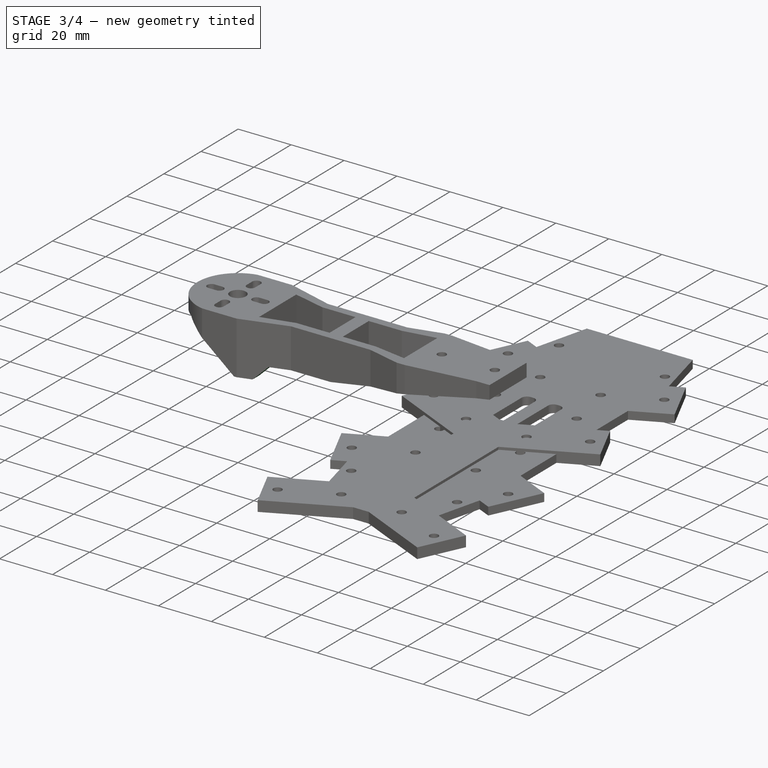
[diagram: stage 3 of 4 — iso view after this stage's code; geometry added in this stage tinted green]
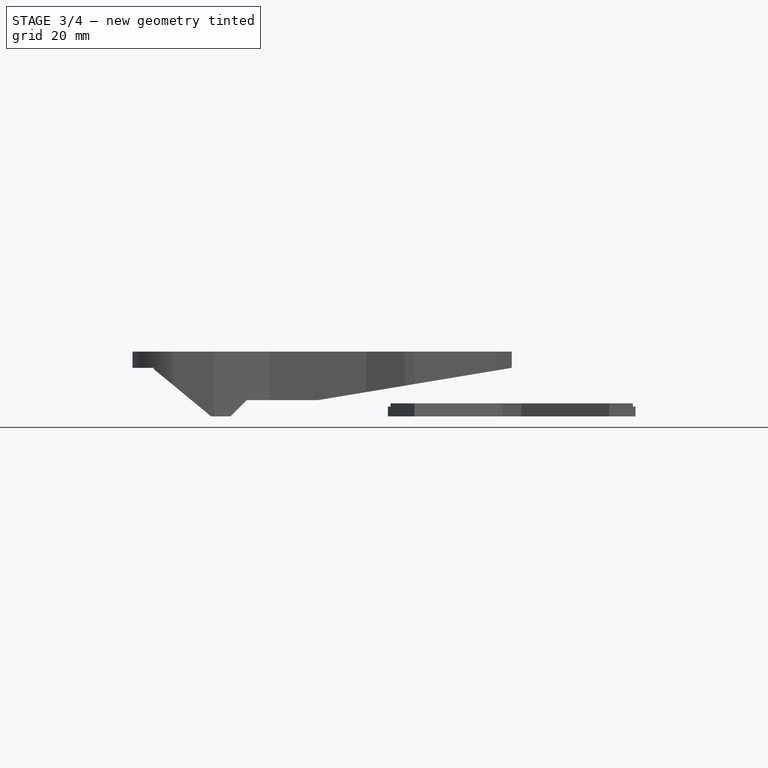
[diagram: stage 3 of 4 — front view after this stage's code; geometry added in this stage tinted green]
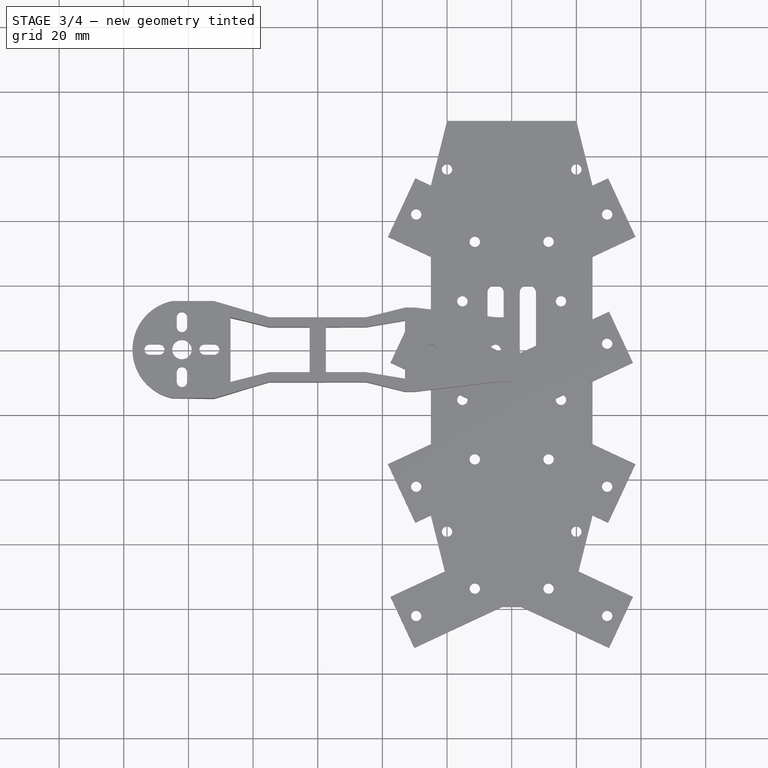
[diagram: stage 3 of 4 — top view after this stage's code; geometry added in this stage tinted green]
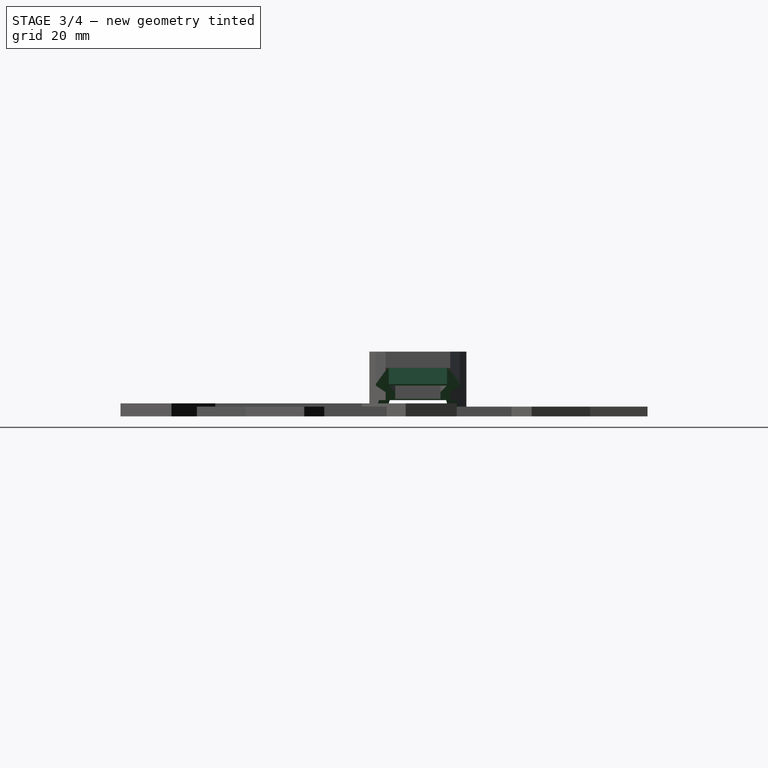
[diagram: stage 3 of 4 — right view after this stage's code; geometry added in this stage tinted green]
FEATURE [Sketcher::SketchObject] Sketch027
  Placement = pos=(0,0,0) rot=(1,0,0;3.14159rad)
  Support = -> Pad007 [Face48]
  sketch-geometry (11):
    g0: LineSegment StartX=0 StartY=9 StartZ=0 EndX=-30 EndY=9 EndZ=0
    g1: LineSegment StartX=-30 StartY=9 StartZ=0 EndX=-30 EndY=-9 EndZ=0
    g2: LineSegment StartX=-30 StartY=-9 StartZ=0 EndX=0 EndY=-9 EndZ=0
    g3: LineSegment StartX=0 StartY=-9 StartZ=0 EndX=0 EndY=9 EndZ=0
    g4: LineSegment [constr] StartX=-102 StartY=13.5 StartZ=0 EndX=-102 EndY=-13.5 EndZ=0
    g5: LineSegment StartX=-102 StartY=13.5 StartZ=0 EndX=-87 EndY=10 EndZ=0
    g6: LineSegment StartX=-87 StartY=10 StartZ=0 EndX=-87 EndY=-10 EndZ=0
    g7: LineSegment StartX=-87 StartY=-10 StartZ=0 EndX=-102 EndY=-13.5 EndZ=0
    g8: LineSegment StartX=-102 StartY=-13.5 StartZ=0 EndX=-120.843 EndY=-11.5 EndZ=0
    g9: LineSegment StartX=-120.843 StartY=-11.5 StartZ=0 EndX=-120.843 EndY=11.5 EndZ=0
    g10: LineSegment StartX=-120.843 StartY=11.5 StartZ=0 EndX=-102 EndY=13.5 EndZ=0
  constraints (31):
    c: Coincident(g0,g1)
    c: Coincident(g1,g2)
    c: Coincident(g2,g3)
    c: Coincident(g3,g0)
    c: Horizontal(g0)
    c: Horizontal(g2)
    c: Vertical(g1)
    c: Vertical(g3)
    c: Distance(g-1,g0) = 9
    c: Distance(g-1,g2) = 9
    c: Distance(g2) = 30
    c: Vertical(g4)
    c: DistanceX(g4,g-1) = 102
    c: DistanceY(g-1,g4) = 13.5
    c: DistanceY(g4,g-1) = 13.5
    c: Coincident(g4,g5)
    c: Coincident(g5,g6)
    c: Vertical(g6)
    c: Coincident(g6,g7)
    c: Coincident(g7,g4)
    c: Coincident(g7,g8)
    c: Coincident(g8,g9)
    c: Vertical(g9)
    c: Coincident(g9,g10)
    c: Coincident(g10,g5)
    c: DistanceY(g9,g4) = 2
    c: DistanceY(g4,g8) = 2
    c: DistanceY(g5,g4) = 3.5
    c: DistanceY(g4,g6) = 3.5
    c: DistanceX(g4,g5) = 15
    c: DistanceX(g9,g4) = 18.8434
FEATURE [PartDesign::Pocket] Pocket003
  Length = 15
  Sketch = -> Sketch027
  Type = 0
FEATURE [Sketcher::SketchObject] Sketch028
  Placement = pos=(0,-10,0) rot=(1,0,0;1.5708rad)
  Support = -> Pocket003 [Face15]
  sketch-geometry (10):
    g0: LineSegment StartX=-123 StartY=14.8459 StartZ=0 EndX=-111 EndY=14.8459 EndZ=0
    g1: LineSegment StartX=-111 StartY=14.8459 StartZ=0 EndX=-93 EndY=0 EndZ=0
    g2: LineSegment StartX=-93 StartY=0 StartZ=0 EndX=-87 EndY=0 EndZ=0
    g3: LineSegment StartX=-87 StartY=0 StartZ=0 EndX=-82 EndY=5 EndZ=0
    g4: LineSegment StartX=-82 StartY=5 StartZ=0 EndX=-60 EndY=5 EndZ=0
    g5: LineSegment StartX=-60 StartY=5 StartZ=0 EndX=0 EndY=15 EndZ=0
    g6: LineSegment StartX=0 StartY=15 StartZ=0 EndX=5 EndY=15 EndZ=0
    g7: LineSegment StartX=5 StartY=15 StartZ=0 EndX=5 EndY=-8.3137 EndZ=0
    g8: LineSegment StartX=5 StartY=-8.3137 StartZ=0 EndX=-123 EndY=-8.3137 EndZ=0
    g9: LineSegment StartX=-123 StartY=-8.3137 StartZ=0 EndX=-123 EndY=14.8459 EndZ=0
  constraints (28):
    c: Horizontal(g0)
    c: Coincident(g0,g1)
    c: PointOnObject(g1,g-1)
    c: Coincident(g1,g2)
    c: PointOnObject(g2,g-1)
    c: Coincident(g2,g3)
    c: Coincident(g3,g4)
    c: Horizontal(g4)
    c: Coincident(g4,g5)
    c: Coincident(g5,g6)
    c: Horizontal(g6)
    c: Coincident(g6,g7)
    c: Vertical(g7)
    c: Coincident(g7,g8)
    c: Horizontal(g8)
    c: Coincident(g8,g9)
    c: Coincident(g9,g0)
    c: Vertical(g9)
    c: DistanceX(g5,g-1) = 0
    c: DistanceY(g-1,g5) = 15
    c: DistanceX(g4,g5) = 60
    c: DistanceY(g-1,g4) = 5
    c: DistanceX(g2,g3) = 5
    c: DistanceX(g2,g2) = 6
    c: DistanceX(g1,g1) = 18
    c: DistanceX(g0,g-1) = 111
    c: DistanceX(g0,g0) = 12
    c: DistanceX(g6,g6) = 5
FEATURE [PartDesign::Pocket] Pocket002
  Length = 5
  Midplane = true
  Sketch = -> Sketch028
  Type = 1
FEATURE [Sketcher::SketchObject] Sketch029
  Placement = pos=(0,0,15) rot=(1,0,0;3.14159rad)
  Support = -> Pocket002 [Face60]
  sketch-geometry (4):
    g0: LineSegment StartX=-87 StartY=12 StartZ=0 EndX=-89 EndY=12 EndZ=0
    g1: LineSegment StartX=-89 StartY=12 StartZ=0 EndX=-89 EndY=-12 EndZ=0
    g2: LineSegment StartX=-89 StartY=-12 StartZ=0 EndX=-87 EndY=-12 EndZ=0
    g3: LineSegment StartX=-87 StartY=-12 StartZ=0 EndX=-87 EndY=12 EndZ=0
  constraints (12):
    c: Coincident(g0,g1)
    c: Coincident(g1,g2)
    c: Coincident(g2,g3)
    c: Coincident(g3,g0)
    c: Horizontal(g0)
    c: Horizontal(g2)
    c: Vertical(g1)
    c: Vertical(g3)
    c: DistanceX(g0,g-1) = 87
    c: DistanceX(g2,g2) = 2
    c: DistanceY(g-1,g0) = 12
    c: DistanceY(g2,g-1) = 12
FEATURE [PartDesign::Pad] Pad006
  Length = 5
  Length2 = 100
  Sketch = -> Sketch029
  Type = 0
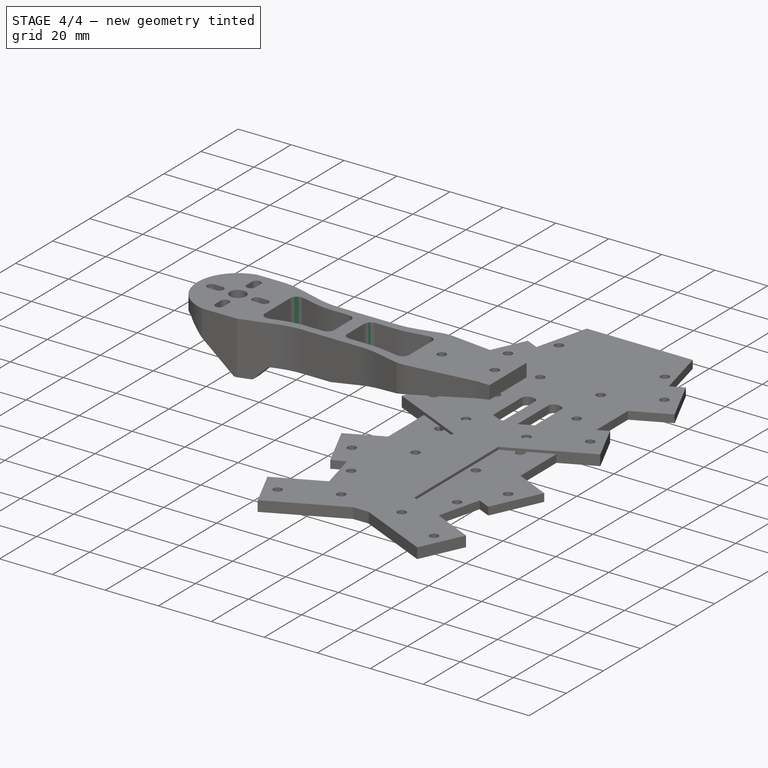
[diagram: stage 4 of 4 — iso view after this stage's code; geometry added in this stage tinted green]
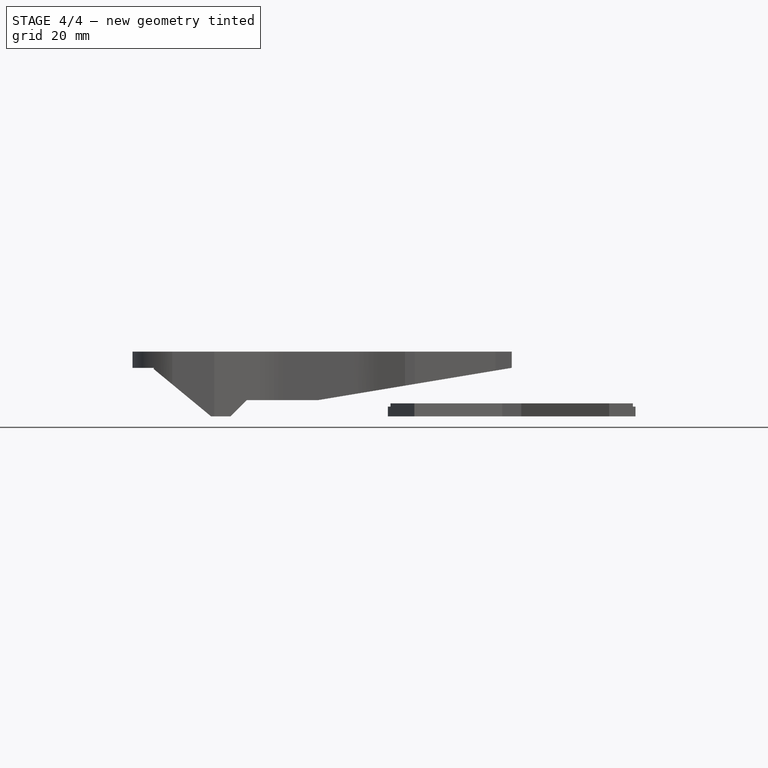
[diagram: stage 4 of 4 — front view after this stage's code; geometry added in this stage tinted green]
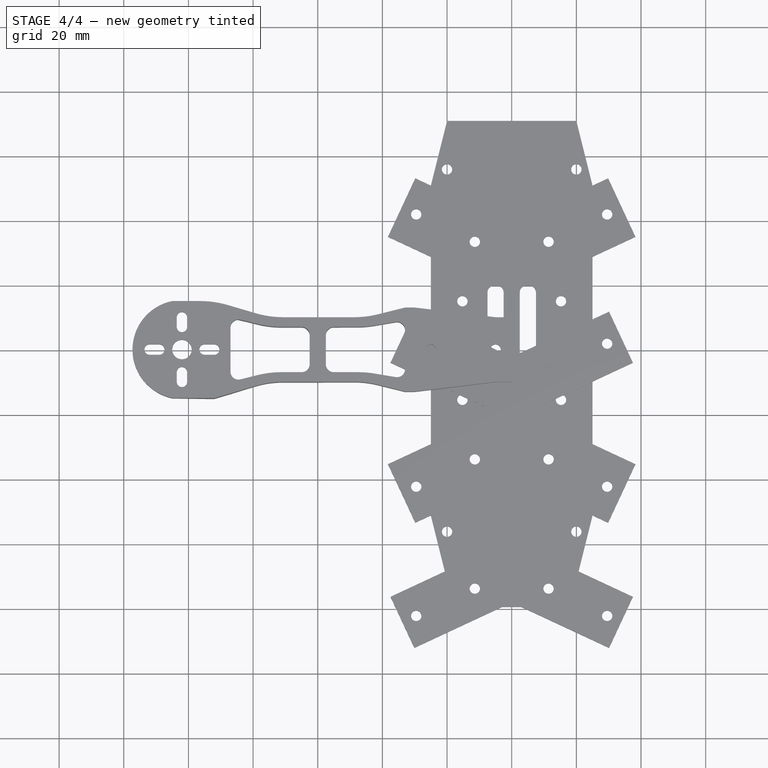
[diagram: stage 4 of 4 — top view after this stage's code; geometry added in this stage tinted green]
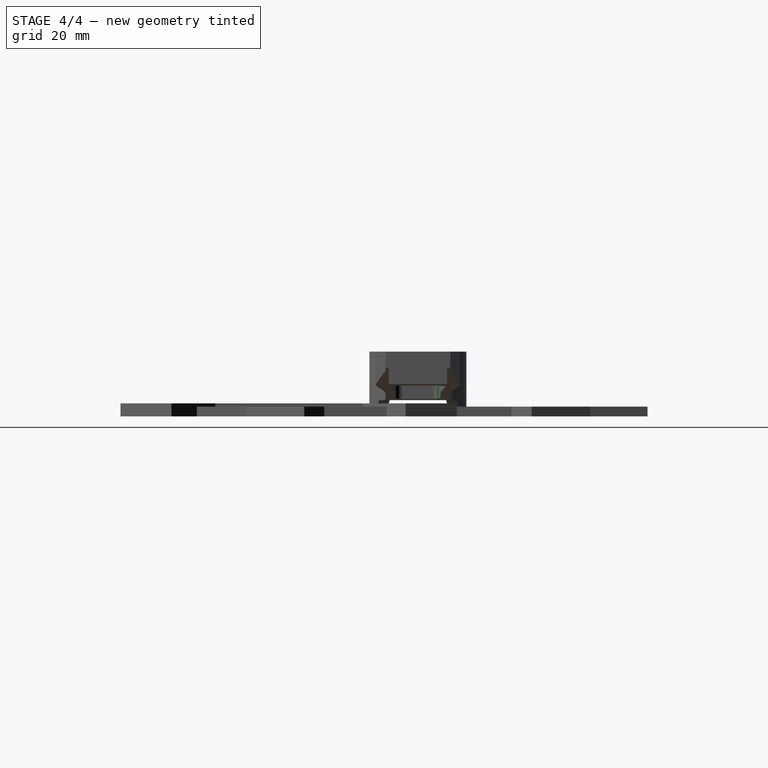
[diagram: stage 4 of 4 — right view after this stage's code; geometry added in this stage tinted green]
FEATURE [PartDesign::Fillet] Fillet
  Base = -> Pad006 [Edge134,Edge130,Edge128,Edge127,Edge101,Edge102,Edge122,Edge99,Edge123,Edge104]
  Radius = 2.5
FEATURE [PartDesign::Fillet] Fillet013
  Base = -> Fillet [Edge142,Edge28,Edge76,Edge73,Edge130,Edge132,Edge42,Edge48,Edge50]
  Radius = 30
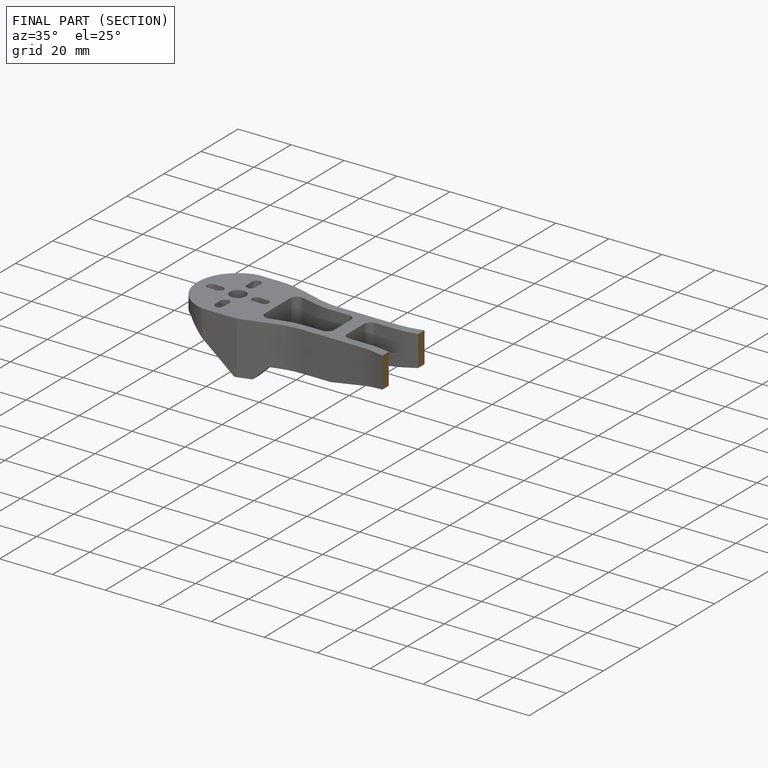
[diagram: finished part — half-section view (interior)]
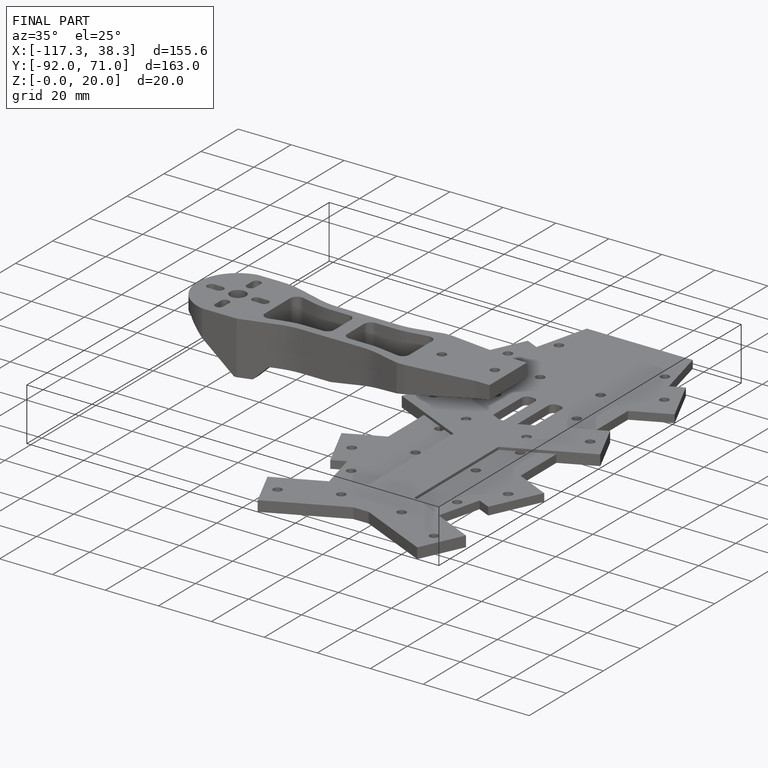
[diagram: finished part — iso view with bounding-box wireframe]
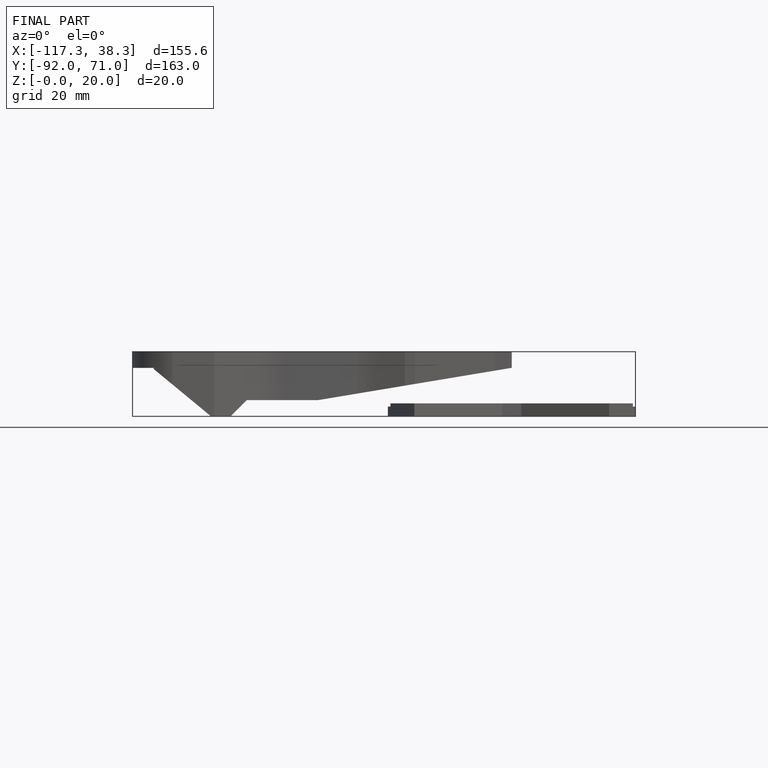
[diagram: finished part — front view with bounding-box wireframe]
